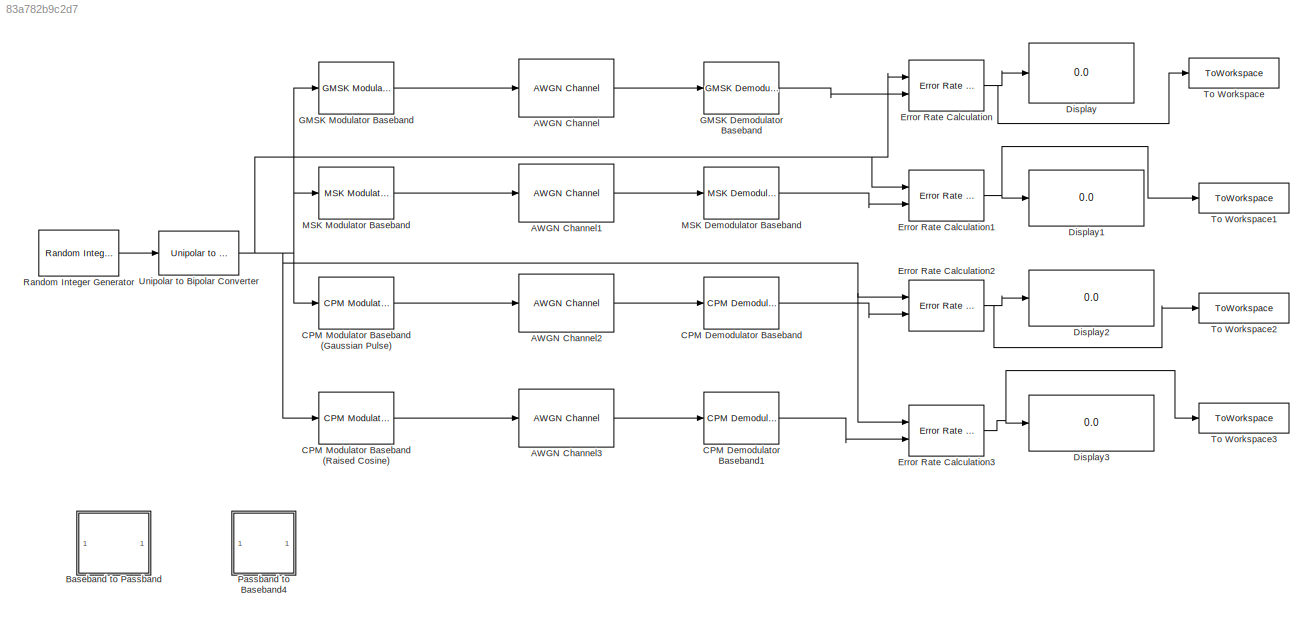
MODEL slx_83a782b9c2d7
KIND model
CONFIG AbsTol = auto
CONFIG EnableMultiTasking = off
CONFIG FixedStep = auto
CONFIG MaxStep = auto
CONFIG MinStep = auto
CONFIG RelTol = 1e-3
CONFIG SampleTimeConstraint = Unconstrained
CONFIG Solver = VariableStepDiscrete
CONFIG SolverName = VariableStepDiscrete
CONFIG StartTime = 0.0
CONFIG StopTime = 1e5
BLOCK [Reference] AWGN Channel  REF=commchan3/AWGN
Channel
  Ports = [1, 1]
  SourceBlock = commchan3/AWGN\nChannel
  SourceProductBaseCode = CM
  SourceProductName = Communications Toolbox
  SourceType = AWGN Channel
  UserDataPersistent = on
BLOCK [Reference] AWGN Channel1  REF=commchan3/AWGN
Channel
  Ports = [1, 1]
  SourceBlock = commchan3/AWGN\nChannel
  SourceProductBaseCode = CM
  SourceProductName = Communications Toolbox
  SourceType = AWGN Channel
  UserDataPersistent = on
BLOCK [Reference] AWGN Channel2  REF=commchan3/AWGN
Channel
  Ports = [1, 1]
  SourceBlock = commchan3/AWGN\nChannel
  SourceProductBaseCode = CM
  SourceProductName = Communications Toolbox
  SourceType = AWGN Channel
  UserDataPersistent = on
BLOCK [Reference] AWGN Channel3  REF=commchan3/AWGN
Channel
  Ports = [1, 1]
  SourceBlock = commchan3/AWGN\nChannel
  SourceProductBaseCode = CM
  SourceProductName = Communications Toolbox
  SourceType = AWGN Channel
  UserDataPersistent = on
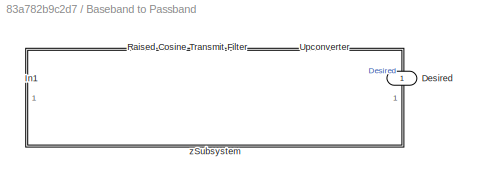
BLOCK [SubSystem] Baseband to Passband
  Commented = on
  Ports = [1, 1]
  RequestExecContextInheritance = off
BLOCK [Outport] Baseband to Passband/Desired
  IconDisplay = Port number
BLOCK [Inport] Baseband to Passband/In1
  IconDisplay = Port number
BLOCK [Reference] Baseband to Passband/Raised Cosine Transmit Filter  REF=commfilt2/Raised Cosine
Transmit Filter
  Ports = [1, 1]
  SourceBlock = commfilt2/Raised Cosine\nTransmit Filter
  SourceProductBaseCode = CM
  SourceProductName = Communications Toolbox
  SourceType = Raised Cosine Transmit Filter
  UserDataPersistent = on
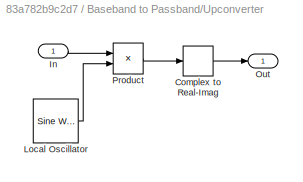
BLOCK [SubSystem] Baseband to Passband/Upconverter
  Ports = [1, 1]
  RequestExecContextInheritance = off
BLOCK [ComplexToRealImag] Baseband to Passband/Upconverter/Complex to Real-Imag
  Output = Real
  Ports = [1, 1]
BLOCK [Inport] Baseband to Passband/Upconverter/In
  IconDisplay = Port number
BLOCK [Reference] Baseband to Passband/Upconverter/Local Oscillator  REF=dspsrcs4/Sine Wave
  Ports = [0, 1]
  SourceBlock = dspsrcs4/Sine Wave
  SourceProductBaseCode = DS
  SourceProductName = DSP System Toolbox
  SourceType = Sine Wave
BLOCK [Outport] Baseband to Passband/Upconverter/Out
  IconDisplay = Port number
  VectorParamsAs1DForOutWhenUnconnected = off
BLOCK [Product] Baseband to Passband/Upconverter/Product
  InputSameDT = off
  OutDataTypeStr = Inherit: Inherit via internal rule
  Ports = [2, 1]
  SaturateOnIntegerOverflow = off
BLOCK [SubSystem] Baseband to Passband/zSubsystem
  Ports = []
  RequestExecContextInheritance = off
BLOCK [Reference] CPM Demodulator Baseband  REF=commdigbbndcpm2/CPM
Demodulator
Baseband
  Ports = [1, 1]
  SourceBlock = commdigbbndcpm2/CPM\nDemodulator\nBaseband
  SourceProductBaseCode = CM
  SourceProductName = Communications Toolbox
  SourceType = CPM Demodulator Baseband
  UserDataPersistent = on
BLOCK [Reference] CPM Demodulator Baseband1  REF=commdigbbndcpm2/CPM
Demodulator
Baseband
  Ports = [1, 1]
  SourceBlock = commdigbbndcpm2/CPM\nDemodulator\nBaseband
  SourceProductBaseCode = CM
  SourceProductName = Communications Toolbox
  SourceType = CPM Demodulator Baseband
  UserDataPersistent = on
BLOCK [Reference] CPM Modulator Baseband (Gaussian Pulse)  REF=commdigbbndcpm2/CPM
Modulator
Baseband
  Ports = [1, 1]
  SourceBlock = commdigbbndcpm2/CPM\nModulator\nBaseband
  SourceProductBaseCode = CM
  SourceProductName = Communications Toolbox
  SourceType = CPM Modulator Baseband
  UserDataPersistent = on
BLOCK [Reference] CPM Modulator Baseband (Raised Cosine)  REF=commdigbbndcpm2/CPM
Modulator
Baseband
  Ports = [1, 1]
  SourceBlock = commdigbbndcpm2/CPM\nModulator\nBaseband
  SourceProductBaseCode = CM
  SourceProductName = Communications Toolbox
  SourceType = CPM Modulator Baseband
  UserDataPersistent = on
BLOCK [Display] Display
  Decimation = 1
  Ports = [1]
BLOCK [Display] Display1
  Decimation = 1
  Ports = [1]
BLOCK [Display] Display2
  Decimation = 1
  Ports = [1]
BLOCK [Display] Display3
  Decimation = 1
  Ports = [1]
BLOCK [Reference] Error Rate Calculation  REF=commsink2/Error Rate
Calculation
  Ports = [2, 1]
  SourceBlock = commsink2/Error Rate\nCalculation
  SourceProductBaseCode = CM
  SourceProductName = Communications Toolbox
  SourceType = Error Rate Calculation
BLOCK [Reference] Error Rate Calculation1  REF=commsink2/Error Rate
Calculation
  Ports = [2, 1]
  SourceBlock = commsink2/Error Rate\nCalculation
  SourceProductBaseCode = CM
  SourceProductName = Communications Toolbox
  SourceType = Error Rate Calculation
BLOCK [Reference] Error Rate Calculation2  REF=commsink2/Error Rate
Calculation
  Ports = [2, 1]
  SourceBlock = commsink2/Error Rate\nCalculation
  SourceProductBaseCode = CM
  SourceProductName = Communications Toolbox
  SourceType = Error Rate Calculation
BLOCK [Reference] Error Rate Calculation3  REF=commsink2/Error Rate
Calculation
  Ports = [2, 1]
  SourceBlock = commsink2/Error Rate\nCalculation
  SourceProductBaseCode = CM
  SourceProductName = Communications Toolbox
  SourceType = Error Rate Calculation
BLOCK [Reference] GMSK Demodulator Baseband  REF=commdigbbndcpm2/GMSK
Demodulator
Baseband
  Ports = [1, 1]
  SourceBlock = commdigbbndcpm2/GMSK\nDemodulator\nBaseband
  SourceProductBaseCode = CM
  SourceProductName = Communications Toolbox
  SourceType = GMSK Demodulator Baseband
  UserDataPersistent = on
BLOCK [Reference] GMSK Modulator Baseband  REF=commdigbbndcpm2/GMSK
Modulator
Baseband
  Ports = [1, 1]
  SourceBlock = commdigbbndcpm2/GMSK\nModulator\nBaseband
  SourceProductBaseCode = CM
  SourceProductName = Communications Toolbox
  SourceType = GMSK Modulator Baseband
  UserDataPersistent = on
BLOCK [Reference] MSK Demodulator Baseband  REF=commdigbbndcpm2/MSK
Demodulator
Baseband
  Ports = [1, 1]
  SourceBlock = commdigbbndcpm2/MSK\nDemodulator\nBaseband
  SourceProductBaseCode = CM
  SourceProductName = Communications Toolbox
  SourceType = MSK Demodulator Baseband
  UserDataPersistent = on
BLOCK [Reference] MSK Modulator Baseband  REF=commdigbbndcpm2/MSK
Modulator
Baseband
  Ports = [1, 1]
  SourceBlock = commdigbbndcpm2/MSK\nModulator\nBaseband
  SourceProductBaseCode = CM
  SourceProductName = Communications Toolbox
  SourceType = MSK Modulator Baseband
  UserDataPersistent = on
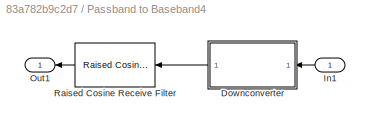
BLOCK [SubSystem] Passband to Baseband4
  Commented = on
  Ports = [1, 1]
  RequestExecContextInheritance = off
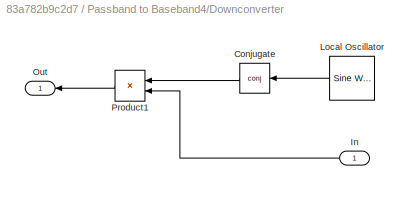
BLOCK [SubSystem] Passband to Baseband4/Downconverter
  Ports = [1, 1]
  RequestExecContextInheritance = off
BLOCK [Math] Passband to Baseband4/Downconverter/Conjugate
  Operator = conj
  Ports = [1, 1]
BLOCK [Inport] Passband to Baseband4/Downconverter/In
  IconDisplay = Port number
BLOCK [Reference] Passband to Baseband4/Downconverter/Local Oscillator  REF=dspsrcs4/Sine Wave
  Ports = [0, 1]
  SourceBlock = dspsrcs4/Sine Wave
  SourceProductBaseCode = DS
  SourceProductName = DSP System Toolbox
  SourceType = Sine Wave
BLOCK [Outport] Passband to Baseband4/Downconverter/Out
  IconDisplay = Port number
  VectorParamsAs1DForOutWhenUnconnected = off
BLOCK [Product] Passband to Baseband4/Downconverter/Product1
  InputSameDT = off
  OutDataTypeStr = Inherit: Inherit via internal rule
  Ports = [2, 1]
  SaturateOnIntegerOverflow = off
BLOCK [Inport] Passband to Baseband4/In1
  IconDisplay = Port number
BLOCK [Outport] Passband to Baseband4/Out1
  IconDisplay = Port number
BLOCK [Reference] Passband to Baseband4/Raised Cosine Receive Filter  REF=commfilt2/Raised Cosine
Receive Filter
  Ports = [1, 1]
  SourceBlock = commfilt2/Raised Cosine\nReceive Filter
  SourceProductBaseCode = CM
  SourceProductName = Communications Toolbox
  SourceType = Raised Cosine Receive Filter
  UserDataPersistent = on
BLOCK [Reference] Random Integer Generator  REF=commrandsrc3/Random Integer
Generator
  Ports = [0, 1]
  SourceBlock = commrandsrc3/Random Integer\nGenerator
  SourceProductBaseCode = CM
  SourceProductName = Communications Toolbox
  SourceType = Random Integer Generator
BLOCK [ToWorkspace] To Workspace
  FixptAsFi = on
  MaxDataPoints = inf
  Ports = [1]
  SampleTime = -1
  Save2DSignal = 2-D array (concatenate along first dimension)
  VariableName = berGMSK
BLOCK [ToWorkspace] To Workspace1
  FixptAsFi = on
  MaxDataPoints = inf
  Ports = [1]
  SampleTime = -1
  Save2DSignal = 2-D array (concatenate along first dimension)
  VariableName = berMSK
BLOCK [ToWorkspace] To Workspace2
  FixptAsFi = on
  MaxDataPoints = inf
  Ports = [1]
  SampleTime = -1
  Save2DSignal = 2-D array (concatenate along first dimension)
  VariableName = berCPMg
BLOCK [ToWorkspace] To Workspace3
  FixptAsFi = on
  MaxDataPoints = inf
  Ports = [1]
  SampleTime = -1
  Save2DSignal = 2-D array (concatenate along first dimension)
  VariableName = berCPMrc
BLOCK [Reference] Unipolar to Bipolar Converter  REF=commutil2/Unipolar to
Bipolar
Converter
  Ports = [1, 1]
  SourceBlock = commutil2/Unipolar to\nBipolar\nConverter
  SourceProductBaseCode = CM
  SourceProductName = Communications Toolbox
  SourceType = Unipolar to Bipolar Converter
LINE AWGN Channel1:1 -> MSK Demodulator Baseband:1
LINE AWGN Channel2:1 -> CPM Demodulator Baseband:1
LINE AWGN Channel3:1 -> CPM Demodulator Baseband1:1
LINE AWGN Channel:1 -> GMSK Demodulator Baseband:1
LINE Baseband to Passband/In1:1 -> Baseband to Passband/Raised Cosine Transmit Filter:1
LINE Baseband to Passband/Raised Cosine Transmit Filter:1 -> Baseband to Passband/Upconverter:1
LINE Baseband to Passband/Upconverter/Complex to Real-Imag:1 -> Baseband to Passband/Upconverter/Out:1
LINE Baseband to Passband/Upconverter/In:1 -> Baseband to Passband/Upconverter/Product:1
LINE Baseband to Passband/Upconverter/Local Oscillator:1 -> Baseband to Passband/Upconverter/Product:2
LINE Baseband to Passband/Upconverter/Product:1 -> Baseband to Passband/Upconverter/Complex to Real-Imag:1
LINE Baseband to Passband/Upconverter:1 -> Baseband to Passband/Desired:1
LINE CPM Demodulator Baseband1:1 -> Error Rate Calculation3:2
LINE CPM Demodulator Baseband:1 -> Error Rate Calculation2:2
LINE CPM Modulator Baseband (Gaussian Pulse):1 -> AWGN Channel2:1
LINE CPM Modulator Baseband (Raised Cosine):1 -> AWGN Channel3:1
NET Error Rate Calculation1:1 -> Display1:1, To Workspace1:1
NET Error Rate Calculation2:1 -> Display2:1, To Workspace2:1
NET Error Rate Calculation3:1 -> Display3:1, To Workspace3:1
NET Error Rate Calculation:1 -> Display:1, To Workspace:1
LINE GMSK Demodulator Baseband:1 -> Error Rate Calculation:2
LINE GMSK Modulator Baseband:1 -> AWGN Channel:1
LINE MSK Demodulator Baseband:1 -> Error Rate Calculation1:2
LINE MSK Modulator Baseband:1 -> AWGN Channel1:1
LINE Passband to Baseband4/Downconverter/Conjugate:1 -> Passband to Baseband4/Downconverter/Product1:1
LINE Passband to Baseband4/Downconverter/In:1 -> Passband to Baseband4/Downconverter/Product1:2
LINE Passband to Baseband4/Downconverter/Local Oscillator:1 -> Passband to Baseband4/Downconverter/Conjugate:1
LINE Passband to Baseband4/Downconverter/Product1:1 -> Passband to Baseband4/Downconverter/Out:1
LINE Passband to Baseband4/Downconverter:1 -> Passband to Baseband4/Raised Cosine Receive Filter:1
LINE Passband to Baseband4/In1:1 -> Passband to Baseband4/Downconverter:1
LINE Passband to Baseband4/Raised Cosine Receive Filter:1 -> Passband to Baseband4/Out1:1
LINE Random Integer Generator:1 -> Unipolar to Bipolar Converter:1
NET Unipolar to Bipolar Converter:1 -> CPM Modulator Baseband (Gaussian Pulse):1, CPM Modulator Baseband (Raised Cosine):1, Error Rate Calculation1:1, Error Rate Calculation2:1, Error Rate Calculation3:1, Error Rate Calculation:1, GMSK Modulator Baseband:1, MSK Modulator Baseband:1
note: NET lines group one-source signal fan-out (src -> all destinations, sorted); 1:1 wires keep LINE
